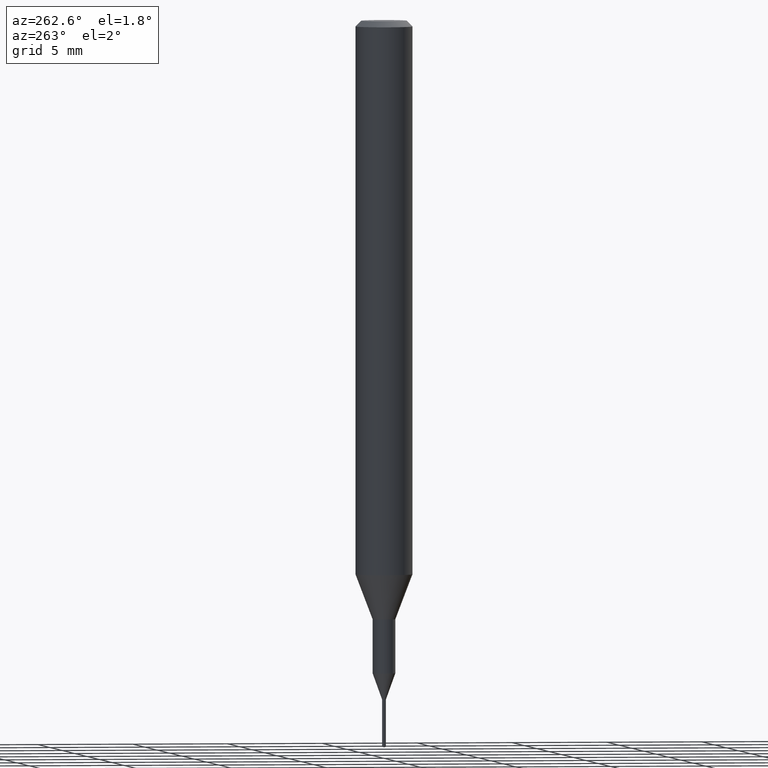
[diagram: clean part render]
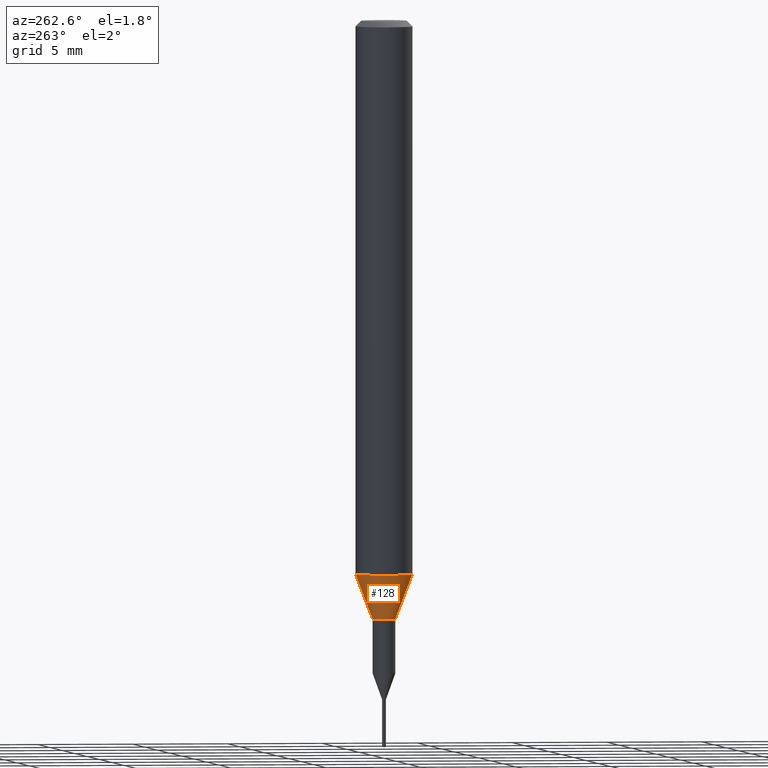
[diagram: same view with one face highlighted and labeled with its STEP entity id]
A machine part, auxiliary view. The second image highlights one B-rep face of the part: STEP entity #128.
In plain terms, the highlighted conical surface has half-angle 20.997 deg.
Its self-contained STEP definition (entity closure, byte-faithful):
#128=ADVANCED_FACE('',(#306),#307,.T.);
#156=EDGE_CURVE('',#240,#198,#337,.T.);
#162=VERTEX_POINT('',#344);
#192=EDGE_CURVE('',#222,#162,#379,.T.);
#198=VERTEX_POINT('',#386);
#222=VERTEX_POINT('',#413);
#226=EDGE_CURVE('',#162,#240,#417,.T.);
#232=EDGE_CURVE('',#222,#198,#425,.T.);
#240=VERTEX_POINT('',#433);
#306=FACE_OUTER_BOUND('',#501,.T.);
#307=CONICAL_SURFACE('',#502,1.05,0.366459241971866);
#337=LINE('',#544,#545);
#344=CARTESIAN_POINT('',(1.83690953073357E-016,-1.5,-28.955));
#379=LINE('',#599,#600);
#386=CARTESIAN_POINT('',(0.0,0.6,-31.3));
#413=CARTESIAN_POINT('',(7.34763812293426E-017,-0.6,-31.3));
#417=CIRCLE('',#645,1.5);
#425=CIRCLE('',#654,0.6);
#433=CARTESIAN_POINT('',(0.0,1.5,-28.955));
#501=EDGE_LOOP('',(#726,#727,#728,#729));
#502=AXIS2_PLACEMENT_3D('',#730,#731,#732);
#544=CARTESIAN_POINT('',(-1.2858366715135E-016,1.05,-30.1275));
#545=VECTOR('',#761,1.0);
#599=CARTESIAN_POINT('',(1.2858366715135E-016,-1.05,-30.1275));
#600=VECTOR('',#826,1.0);
#645=AXIS2_PLACEMENT_3D('',#867,#868,#869);
#654=AXIS2_PLACEMENT_3D('',#886,#887,#888);
#726=ORIENTED_EDGE('',*,*,#156,.T.);
#727=ORIENTED_EDGE('',*,*,#232,.F.);
#728=ORIENTED_EDGE('',*,*,#192,.T.);
#729=ORIENTED_EDGE('',*,*,#226,.T.);
#730=CARTESIAN_POINT('',(0.0,0.0,-30.1275));
#731=DIRECTION('',(-0.0,-0.0,1.0));
#732=DIRECTION('',(0.0,1.0,0.0));
#761=DIRECTION('',(4.38791184365088E-017,-0.358312026550805,-0.93360189140182));
#826=DIRECTION('',(4.38791184365088E-017,-0.358312026550805,0.93360189140182));
#867=CARTESIAN_POINT('',(0.0,0.0,-28.955));
#868=DIRECTION('',(0.0,0.0,-1.0));
#869=DIRECTION('',(0.0,1.0,0.0));
#886=CARTESIAN_POINT('',(0.0,0.0,-31.3));
#887=DIRECTION('',(0.0,0.0,-1.0));
#888=DIRECTION('',(0.0,1.0,0.0));